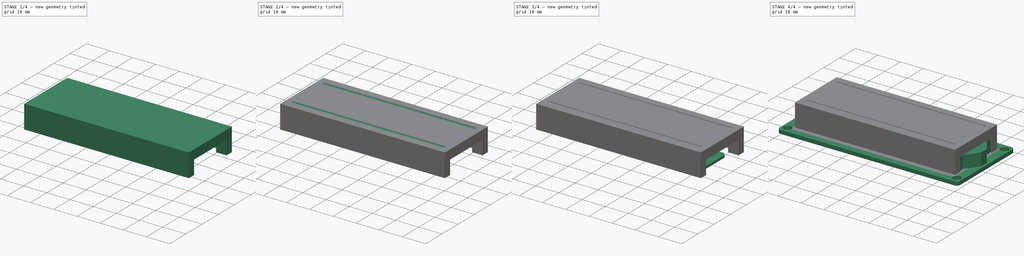
[diagram: build sequence overview — one tinted view per stage of 4, left to right]
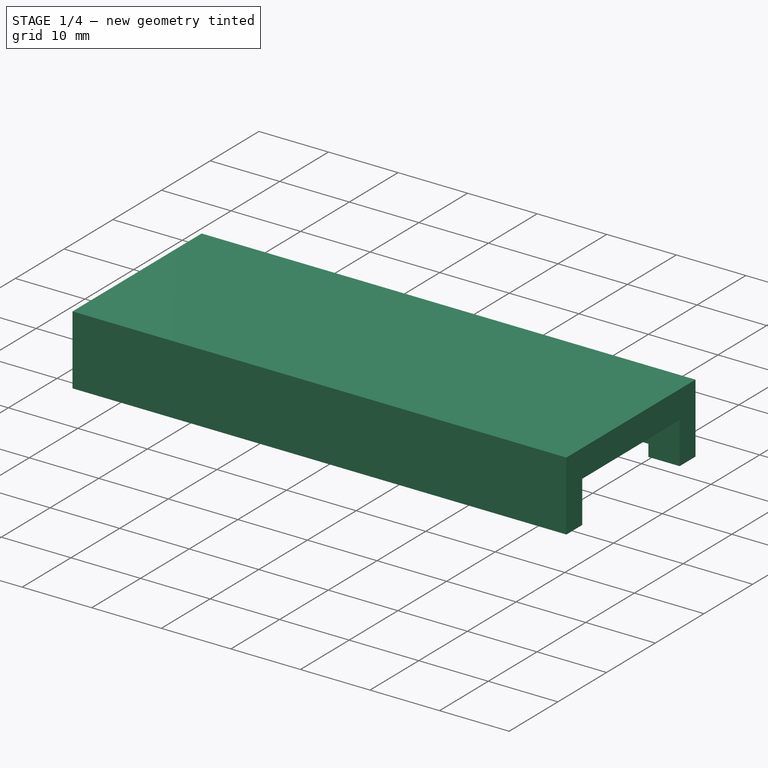
[diagram: stage 1 of 4 — iso view after this stage's code; geometry added in this stage tinted green]
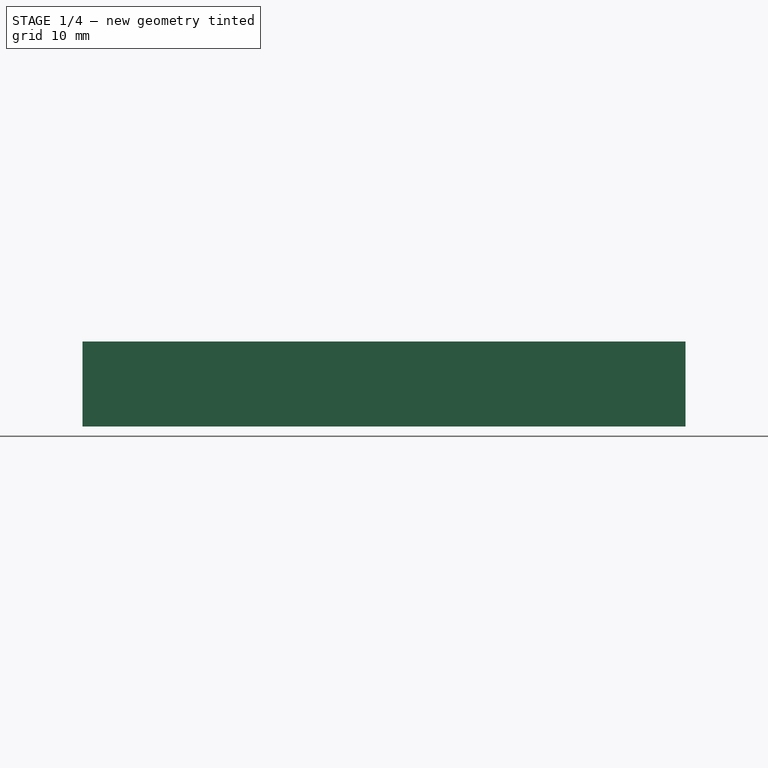
[diagram: stage 1 of 4 — front view after this stage's code; geometry added in this stage tinted green]
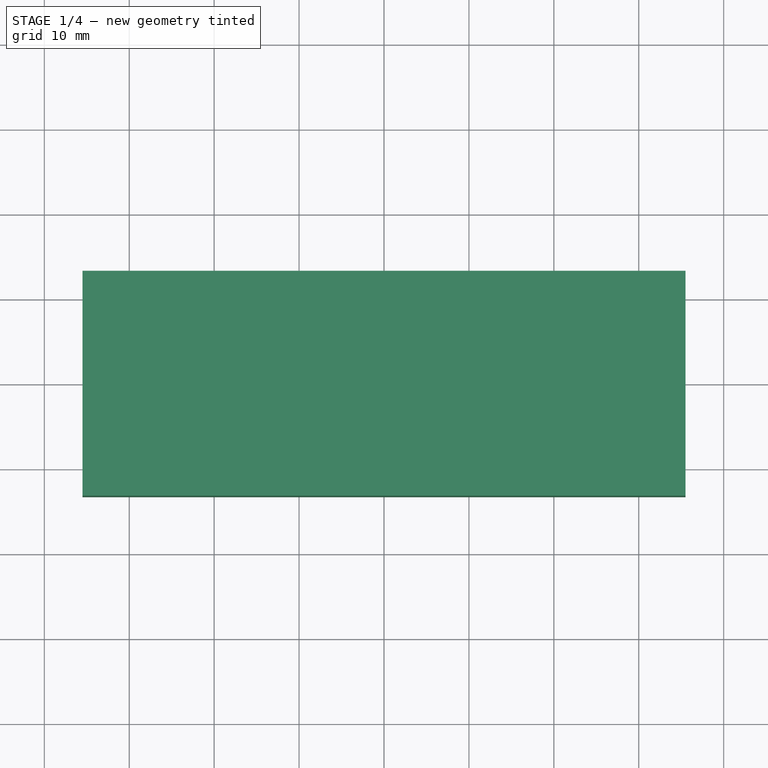
[diagram: stage 1 of 4 — top view after this stage's code; geometry added in this stage tinted green]
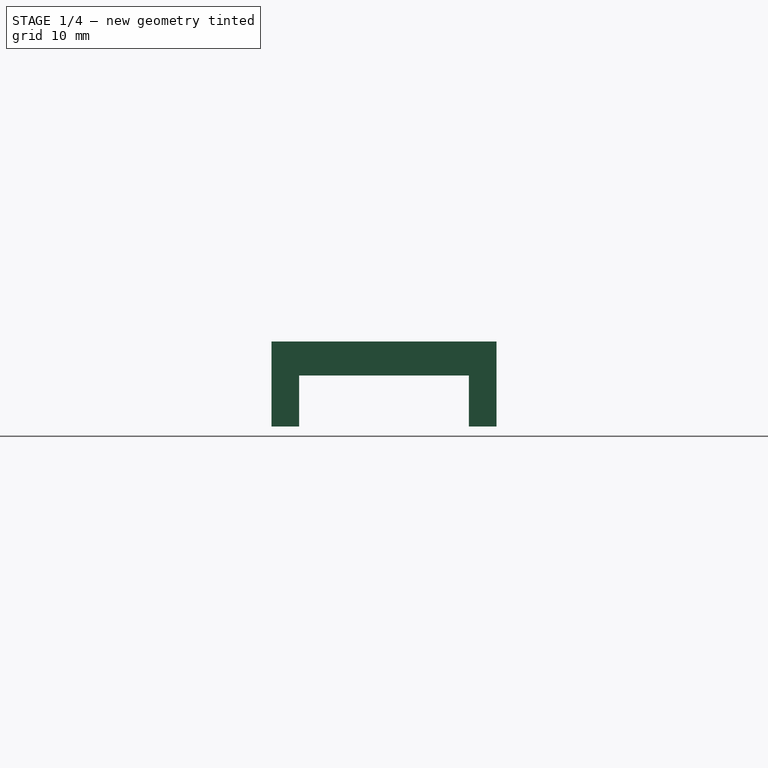
[diagram: stage 1 of 4 — right view after this stage's code; geometry added in this stage tinted green]
FCSTD DOCUMENT  (FreeCAD 1.0R39319 (Git))
Label: Display-LCD16x2
License: All rights reserved
LicenseURL: http://en.wikipedia.org/wiki/All_rights_reserved
objects: Sketcher::SketchObject×5, PartDesign::Pad×4, PartDesign::Body×4, PartDesign::Fillet×2, PartDesign::SubtractiveBox×2, PartDesign::Mirrored×2, PartDesign::Pocket×1
note: 45 computed .brp shape members not serialized (recipe doc carries the construction recipe); baked Part::Feature solids carry a one-line shape summary decoded from their .brp

FEATURE [PartDesign::Body] Body001
  AllowCompound = false
  Group = -> [Sketch002,Pad001]
  Origin = -> Origin001
  Tip = -> Pad001
FEATURE [Sketcher::SketchObject] Sketch003
  ArcFitTolerance = 0
  AttachmentSupport = -> [XY_Plane002]
  FullyConstrained = true
  MakeInternals = false
  MapMode = 5
  sketch-geometry (4):
    g0: LineSegment StartX=-35.5 StartY=13.25 StartZ=0 EndX=35.5 EndY=13.25 EndZ=0
    g1: LineSegment StartX=35.5 StartY=13.25 StartZ=0 EndX=35.5 EndY=-13.25 EndZ=0
    g2: LineSegment StartX=35.5 StartY=-13.25 StartZ=0 EndX=-35.5 EndY=-13.25 EndZ=0
    g3: LineSegment StartX=-35.5 StartY=-13.25 StartZ=0 EndX=-35.5 EndY=13.25 EndZ=0
  constraints (10):
    c: Coincident(g0,g1)
    c: Coincident(g1,g2)
    c: Coincident(g2,g3)
    c: Coincident(g3,g0)
    c: Horizontal(g2)
    c: Vertical(g3)
    c: DistanceY(g1,g1) = 26.5
    c: Symmetric(g0,g1,g-1)
    c: Symmetric(g0,g0,g-2)
    c: DistanceX(g2,g2) = 71
FEATURE [PartDesign::Pad] Pad002
  AllowMultiFace = false
  Direction = (0,0,1)
  Length = 10
  Length2 = 100
  Profile = -> Sketch003
  Suppressed = false
  Type = 0
FEATURE [PartDesign::SubtractiveBox] Box
  AttacherType = Attacher::AttachEngine3D
  AttachmentOffset = pos=(-10,0,-36) rot=(0,0,1;0rad)
  AttachmentSupport = -> [YZ_Plane002]
  BaseFeature = -> Pad002
  Height = 72
  Length = 20
  MapMode = 5
  Placement = pos=(-36,-10,0) rot=(0.57735,0.57735,0.57735;2.0944rad)
  Suppressed = false
  Width = 6
FEATURE [PartDesign::SubtractiveBox] Box001
  AttacherType = Attacher::AttachEngine3D
  AttachmentOffset = pos=(5,0,-13) rot=(0,0,1;0rad)
  AttachmentSupport = -> [XZ_Plane002]
  BaseFeature = -> Box
  Height = 26
  Length = 26
  MapMode = 5
  Placement = pos=(5,13,-2.9e-15) rot=(1,0,0;1.5708rad)
  Suppressed = false
  Width = 4
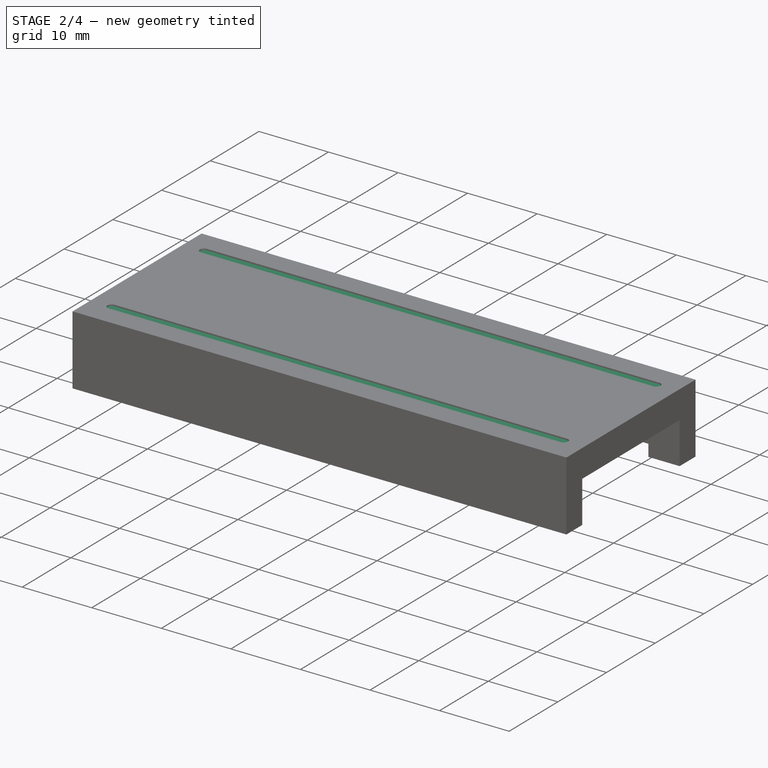
[diagram: stage 2 of 4 — iso view after this stage's code; geometry added in this stage tinted green]
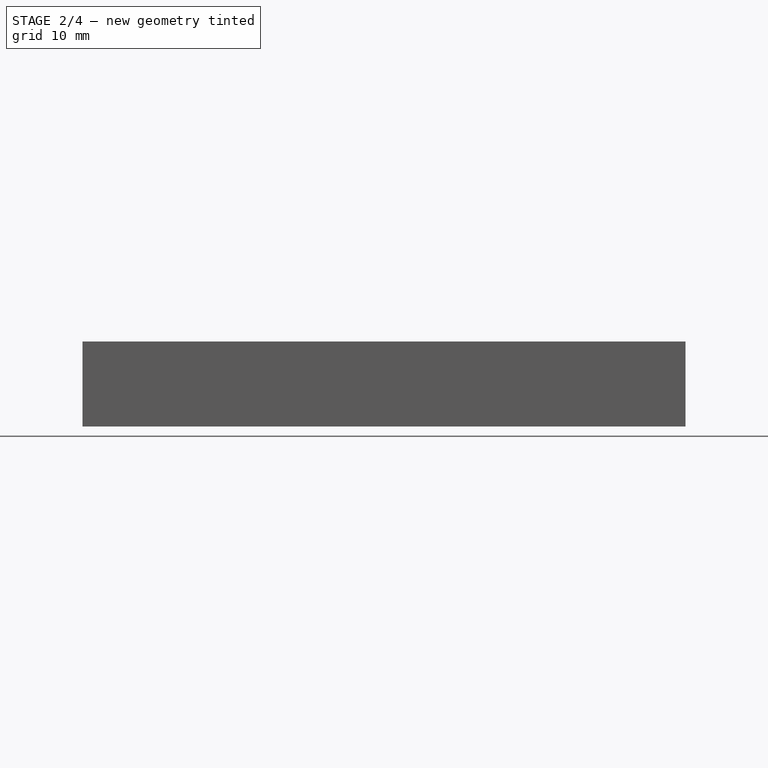
[diagram: stage 2 of 4 — front view after this stage's code; geometry added in this stage tinted green]
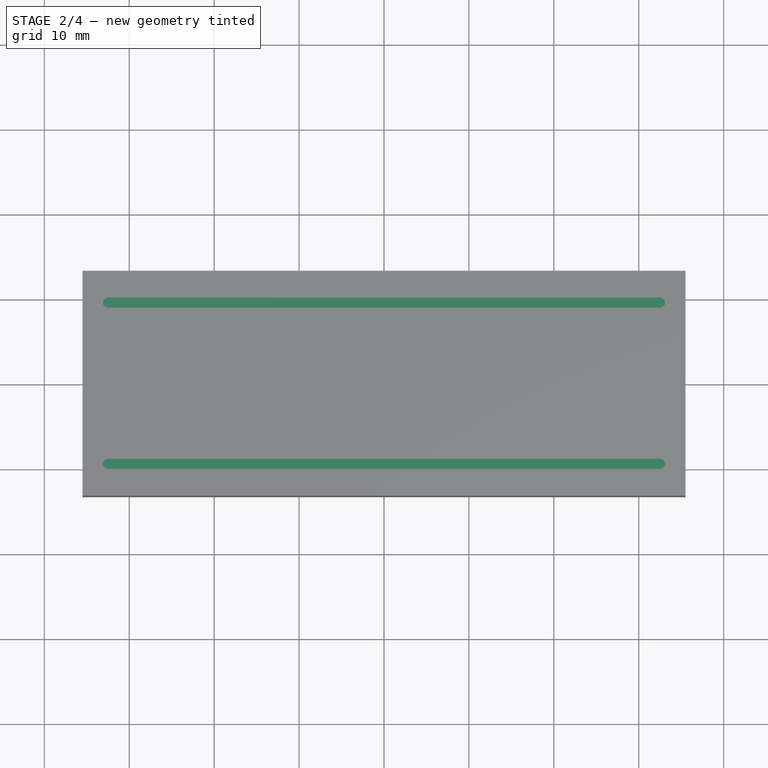
[diagram: stage 2 of 4 — top view after this stage's code; geometry added in this stage tinted green]
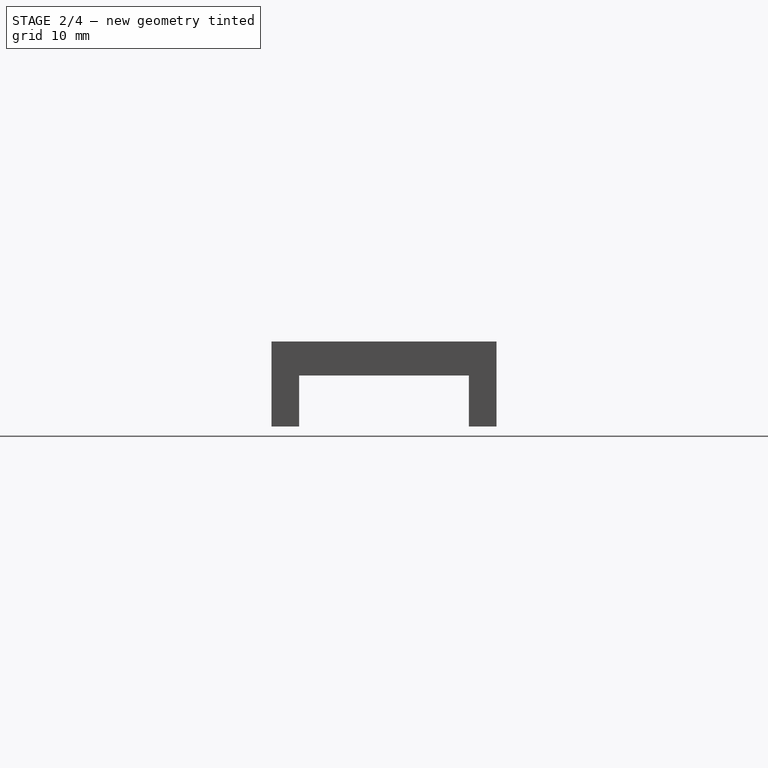
[diagram: stage 2 of 4 — right view after this stage's code; geometry added in this stage tinted green]
FEATURE [Sketcher::SketchObject] Sketch004
  ArcFitTolerance = 0
  AttachmentSupport = -> [Pad002]
  FullyConstrained = true
  MakeInternals = false
  MapMode = 5
  Placement = pos=(0,0,10) rot=(0,0,1;0rad)
  sketch-geometry (4):
    g0: ArcOfCircle CenterX=-32.5 CenterY=9.5 CenterZ=0 NormalX=0 NormalY=0 NormalZ=1 AngleXU=0 Radius=0.6 StartAngle=1.5708 EndAngle=4.71239
    g1: ArcOfCircle CenterX=32.5 CenterY=9.5 CenterZ=0 NormalX=0 NormalY=0 NormalZ=1 AngleXU=0 Radius=0.6 StartAngle=4.71239 EndAngle=7.85398
    g2: LineSegment StartX=-32.5 StartY=8.9 StartZ=0 EndX=32.5 EndY=8.9 EndZ=0
    g3: LineSegment StartX=-32.5 StartY=10.1 StartZ=0 EndX=32.5 EndY=10.1 EndZ=0
  constraints (9):
    c: Tangent(g0,g3) = 1.5708
    c: Tangent(g0,g2) = -1.5708
    c: Tangent(g2,g1) = -1.5708
    c: Tangent(g3,g1) = 1.5708
    c: Horizontal(g2)
    c: Symmetric(g0,g1,g-2)
    c: Radius(g1) = 0.6
    c: DistanceX(g0,g1) = 65
    c: DistanceY(g-1,g1) = 9.5
FEATURE [PartDesign::Pocket] Pocket
  AllowMultiFace = false
  BaseFeature = -> Box001
  Direction = (0,0,-1)
  Length = 0.2
  Length2 = 100
  Placement = pos=(5,13,-2.9e-15) rot=(1,0,0;1.5708rad)
  Profile = -> Sketch004
  Suppressed = false
  Type = 0
FEATURE [PartDesign::Body] Body003
  AllowCompound = false
  Group = -> [Sketch005,Pad003,Fillet001]
  Origin = -> Origin003
  Placement = pos=(0,0,9.5) rot=(0,0,1;0rad)
  Tip = -> Fillet001
FEATURE [PartDesign::Mirrored] Mirrored
  BaseFeature = -> Pocket
  MirrorPlane = -> XZ_Plane002
  Originals = -> [Pocket]
  Placement = pos=(5,13,-2.9e-15) rot=(1,0,0;1.5708rad)
  Suppressed = false
  TransformMode = 0
FEATURE [PartDesign::Mirrored] Mirrored001
  BaseFeature = -> Mirrored
  MirrorPlane = -> YZ_Plane002
  Originals = -> [Box001]
  Placement = pos=(5,13,-2.9e-15) rot=(1,0,0;1.5708rad)
  Suppressed = false
  TransformMode = 0
FEATURE [PartDesign::Body] Body002
  AllowCompound = false
  Group = -> [Sketch003,Pad002,Box,Box001,Sketch004,Pocket,Mirrored,Mirrored001]
  Origin = -> Origin002
  Tip = -> Mirrored001
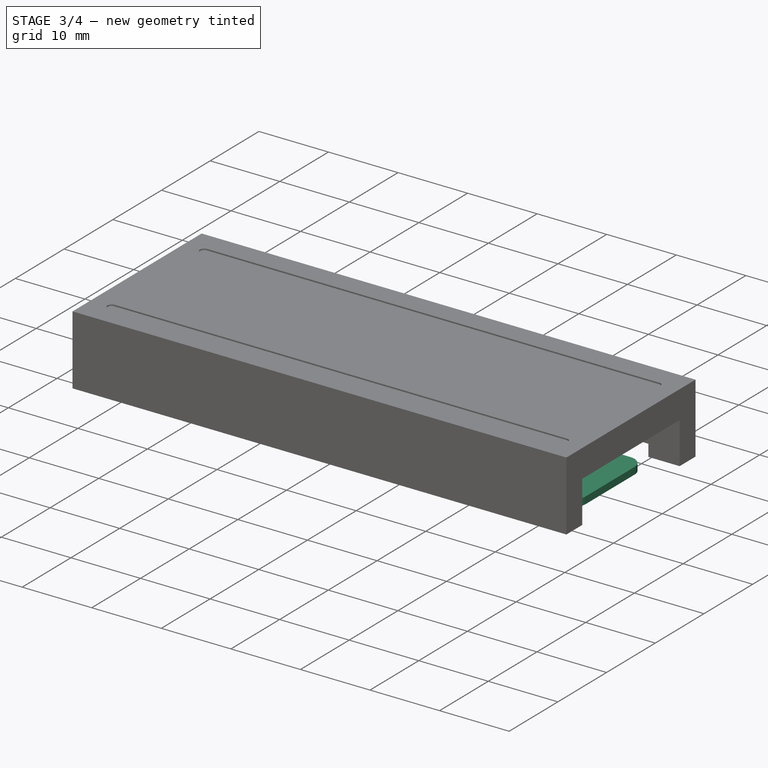
[diagram: stage 3 of 4 — iso view after this stage's code; geometry added in this stage tinted green]
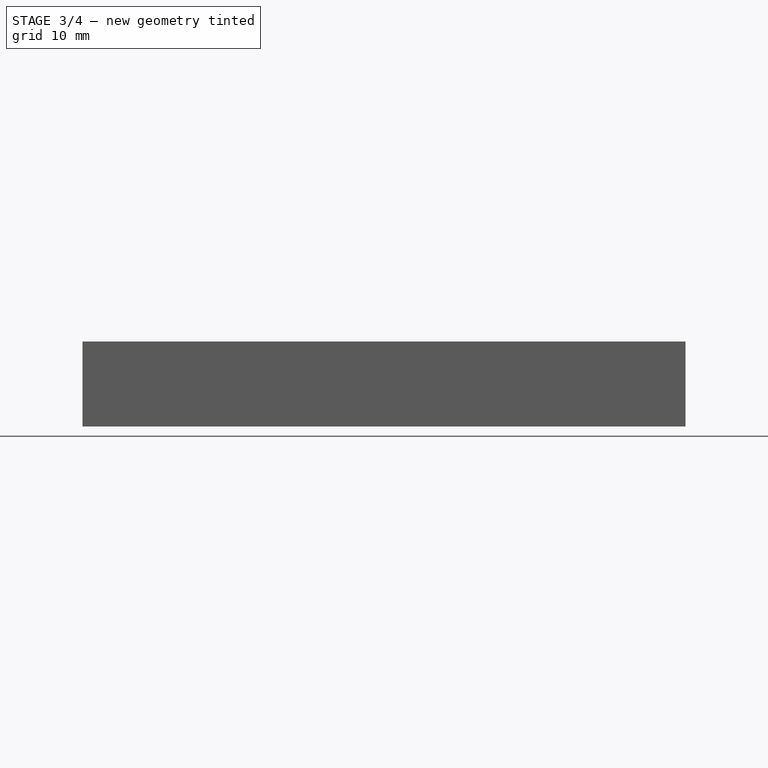
[diagram: stage 3 of 4 — front view after this stage's code; geometry added in this stage tinted green]
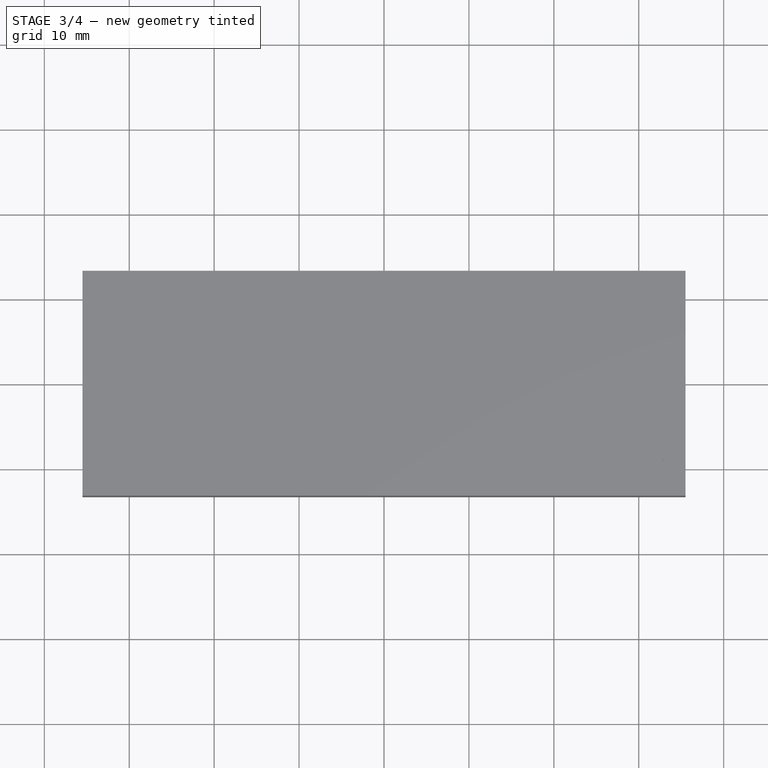
[diagram: stage 3 of 4 — top view after this stage's code; geometry added in this stage tinted green]
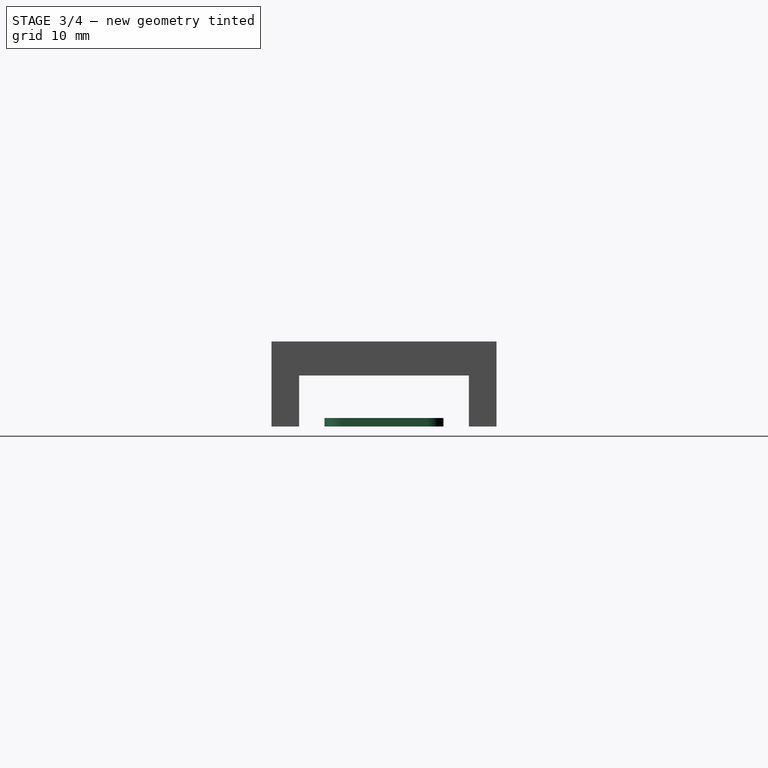
[diagram: stage 3 of 4 — right view after this stage's code; geometry added in this stage tinted green]
FEATURE [Sketcher::SketchObject] Sketch005
  ArcFitTolerance = 0
  AttachmentSupport = -> [XY_Plane003]
  FullyConstrained = true
  MakeInternals = false
  MapMode = 5
  sketch-geometry (4):
    g0: LineSegment StartX=-32.5 StartY=7 StartZ=0 EndX=32.5 EndY=7 EndZ=0
    g1: LineSegment StartX=32.5 StartY=7 StartZ=0 EndX=32.5 EndY=-7 EndZ=0
    g2: LineSegment StartX=32.5 StartY=-7 StartZ=0 EndX=-32.5 EndY=-7 EndZ=0
    g3: LineSegment StartX=-32.5 StartY=-7 StartZ=0 EndX=-32.5 EndY=7 EndZ=0
  constraints (10):
    c: Coincident(g0,g1)
    c: Coincident(g1,g2)
    c: Coincident(g2,g3)
    c: Coincident(g3,g0)
    c: Horizontal(g2)
    c: Vertical(g1)
    c: Symmetric(g0,g0,g-2)
    c: Symmetric(g0,g2,g-1)
    c: DistanceY(g1,g1) = 14
    c: DistanceX(g0,g0) = 65
FEATURE [PartDesign::Pad] Pad003
  AllowMultiFace = false
  Direction = (0,0,1)
  Length = 1
  Length2 = 100
  Profile = -> Sketch005
  Suppressed = false
  Type = 0
FEATURE [PartDesign::Fillet] Fillet001
  Base = -> Pad003 [Edge2,Edge5,Edge1,Edge8]
  BaseFeature = -> Pad003
  Radius = 2
  Refine = true
  SupportTransform = false
  Suppressed = false
  UseAllEdges = false
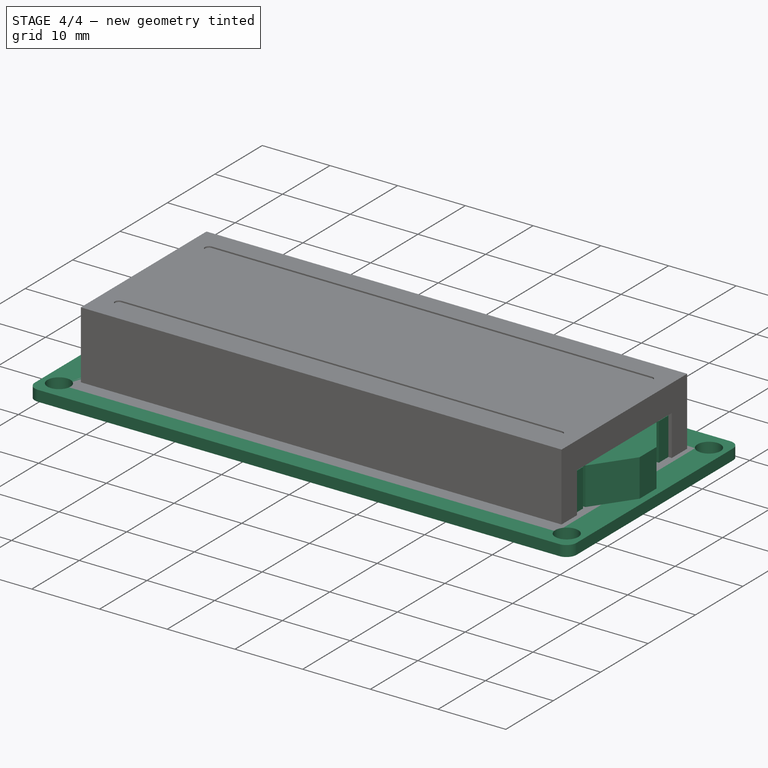
[diagram: stage 4 of 4 — iso view after this stage's code; geometry added in this stage tinted green]
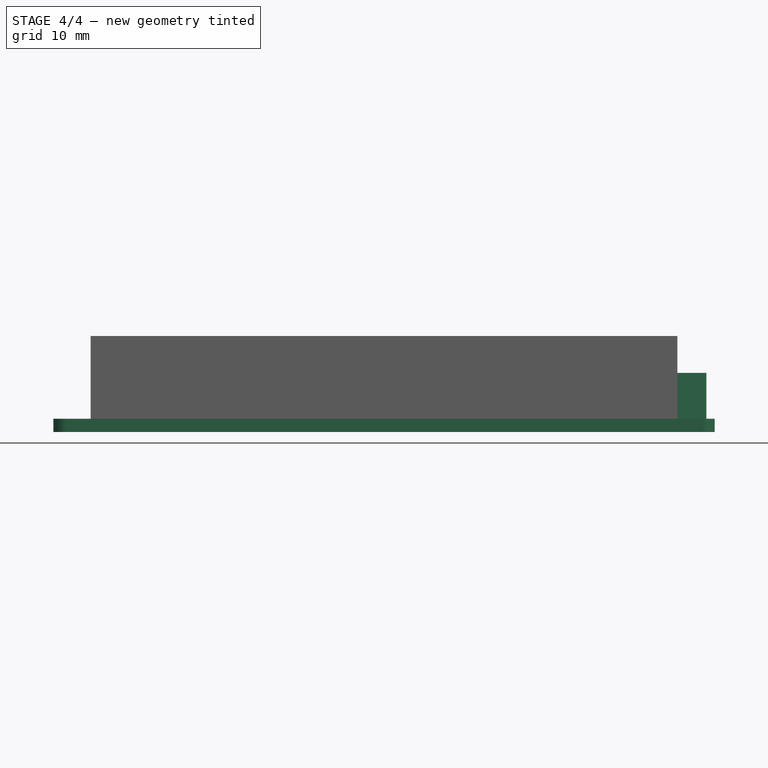
[diagram: stage 4 of 4 — front view after this stage's code; geometry added in this stage tinted green]
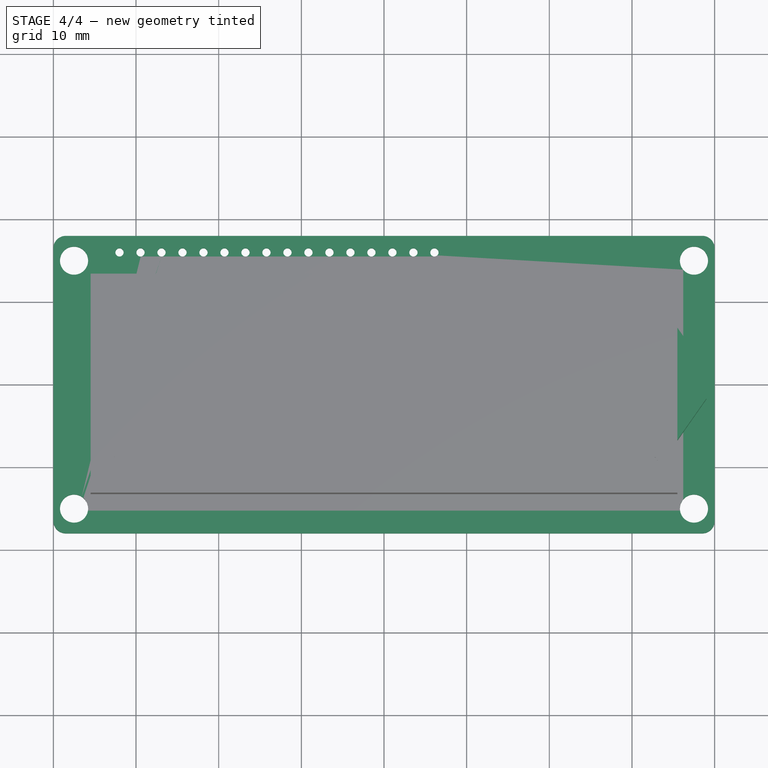
[diagram: stage 4 of 4 — top view after this stage's code; geometry added in this stage tinted green]
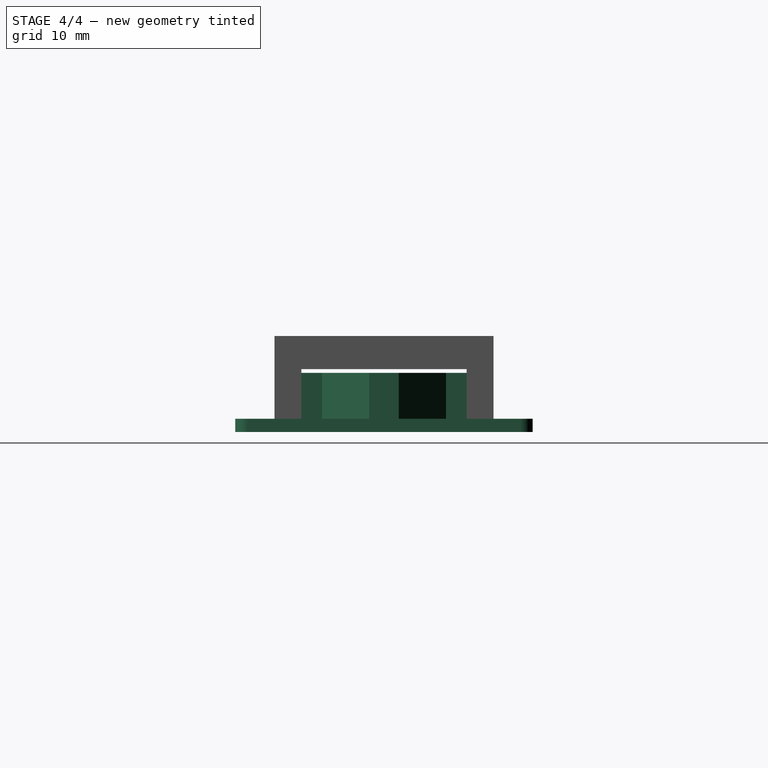
[diagram: stage 4 of 4 — right view after this stage's code; geometry added in this stage tinted green]
FEATURE [Sketcher::SketchObject] Sketch
  ArcFitTolerance = 0
  AttachmentSupport = -> [XY_Plane]
  FullyConstrained = true
  MakeInternals = false
  MapMode = 5
  sketch-geometry (24):
    g0: LineSegment StartX=-40 StartY=18 StartZ=0 EndX=40 EndY=18 EndZ=0
    g1: LineSegment StartX=40 StartY=18 StartZ=0 EndX=40 EndY=-18 EndZ=0
    g2: LineSegment StartX=40 StartY=-18 StartZ=0 EndX=-40 EndY=-18 EndZ=0
    g3: LineSegment StartX=-40 StartY=-18 StartZ=0 EndX=-40 EndY=18 EndZ=0
    g4: Circle CenterX=-37.5 CenterY=15 CenterZ=0 NormalX=0 NormalY=0 NormalZ=1 AngleXU=0 Radius=1.7
    g5: Circle CenterX=37.5 CenterY=15 CenterZ=0 NormalX=0 NormalY=0 NormalZ=1 AngleXU=0 Radius=1.7
    g6: Circle CenterX=37.5 CenterY=-15 CenterZ=0 NormalX=0 NormalY=0 NormalZ=1 AngleXU=0 Radius=1.7
    g7: Circle CenterX=-37.5 CenterY=-15 CenterZ=0 NormalX=0 NormalY=0 NormalZ=1 AngleXU=0 Radius=1.7
    g8: Circle CenterX=-32 CenterY=16 CenterZ=0 NormalX=0 NormalY=0 NormalZ=1 AngleXU=0 Radius=0.5
    g9: Circle CenterX=-29.46 CenterY=16 CenterZ=0 NormalX=0 NormalY=0 NormalZ=1 AngleXU=0 Radius=0.5
    g10: Circle CenterX=-26.92 CenterY=16 CenterZ=0 NormalX=0 NormalY=0 NormalZ=1 AngleXU=0 Radius=0.5
    g11: Circle CenterX=-24.38 CenterY=16 CenterZ=0 NormalX=0 NormalY=0 NormalZ=1 AngleXU=0 Radius=0.5
    g12: Circle CenterX=-21.84 CenterY=16 CenterZ=0 NormalX=0 NormalY=0 NormalZ=1 AngleXU=0 Radius=0.5
    g13: Circle CenterX=-19.3 CenterY=16 CenterZ=0 NormalX=0 NormalY=0 NormalZ=1 AngleXU=0 Radius=0.5
    g14: Circle CenterX=-16.76 CenterY=16 CenterZ=0 NormalX=0 NormalY=0 NormalZ=1 AngleXU=0 Radius=0.5
    g15: Circle CenterX=-11.68 CenterY=16 CenterZ=0 NormalX=0 NormalY=0 NormalZ=1 AngleXU=0 Radius=0.5
    g16: Circle CenterX=-14.22 CenterY=16 CenterZ=0 NormalX=0 NormalY=0 NormalZ=1 AngleXU=0 Radius=0.5
    g17: Circle CenterX=-9.14 CenterY=16 CenterZ=0 NormalX=0 NormalY=0 NormalZ=1 AngleXU=0 Radius=0.5
    g18: Circle CenterX=-6.6 CenterY=16 CenterZ=0 NormalX=0 NormalY=0 NormalZ=1 AngleXU=0 Radius=0.5
    g19: Circle CenterX=-4.06 CenterY=16 CenterZ=0 NormalX=0 NormalY=0 NormalZ=1 AngleXU=0 Radius=0.5
    g20: Circle CenterX=-1.52 CenterY=16 CenterZ=0 NormalX=0 NormalY=0 NormalZ=1 AngleXU=0 Radius=0.5
    g21: Circle CenterX=1.02 CenterY=16 CenterZ=0 NormalX=0 NormalY=0 NormalZ=1 AngleXU=0 Radius=0.5
    g22: Circle CenterX=3.56 CenterY=16 CenterZ=0 NormalX=0 NormalY=0 NormalZ=1 AngleXU=0 Radius=0.5
    g23: Circle CenterX=6.1 CenterY=16 CenterZ=0 NormalX=0 NormalY=0 NormalZ=1 AngleXU=0 Radius=0.5
  constraints (68):
    c: Coincident(g0,g1)
    c: Coincident(g1,g2)
    c: Coincident(g2,g3)
    c: Coincident(g3,g0)
    c: Horizontal(g2)
    c: Vertical(g1)
    c: Symmetric(g0,g0,g-2)
    c: Symmetric(g0,g2,g-1)
    c: DistanceX(g2,g2) = 80
    c: DistanceY(g1,g1) = 36
    c: Symmetric(g7,g4,g-1)
    c: Symmetric(g5,g4,g-2)
    c: Equal(g6,g5)
    c: Equal(g5,g4)
    c: Equal(g4,g7)
    c: Horizontal(g6,g7)
    c: Vertical(g6,g5)
    c: Diameter(g7) = 3.4
    c: DistanceX(g7,g6) = 75
    c: DistanceY(g6,g5) = 30
    c: Diameter(g8) = 1
    c: Equal(g8,g9) = 1
    c: Equal(g8,g10) = 1
    c: Equal(g10,g11) = 1
    c: Equal(g8,g12) = 1
    c: Equal(g12,g13) = 1
    c: Equal(g12,g14) = 1
    c: Equal(g14,g15) = 1
    c: Equal(g8,g16) = 1
    c: Equal(g16,g17) = 1
    c: Equal(g16,g18) = 1
    c: Equal(g18,g19) = 1
    c: Equal(g16,g20) = 1
    c: Equal(g20,g21) = 1
    c: Equal(g20,g22) = 1
    c: Equal(g22,g23) = 1
    c: Horizontal(g8,g9)
    c: Horizontal(g9,g10)
    c: Horizontal(g10,g11)
    c: Horizontal(g11,g12)
    c: Horizontal(g12,g13)
    c: Horizontal(g13,g14)
    c: Horizontal(g14,g16)
    c: Horizontal(g16,g15)
    c: Horizontal(g15,g17)
    c: Horizontal(g17,g18)
    c: Horizontal(g18,g19)
    c: Horizontal(g19,g20)
    c: Horizontal(g20,g21)
    c: Horizontal(g21,g22)
    c: Horizontal(g22,g23)
    c: DistanceX(g10,g11) = 2.54
    c: DistanceX(g11,g12) = 2.54
    c: DistanceX(g12,g13) = 2.54
    c: DistanceX(g13,g14) = 2.54
    c: DistanceX(g9,g10) = 2.54
    c: DistanceX(g8,g9) = 2.54
    c: DistanceX(g14,g16) = 2.54
    c: DistanceX(g16,g15) = 2.54
    c: DistanceX(g22,g23) = 2.54
    c: DistanceX(g21,g22) = 2.54
    c: DistanceX(g20,g21) = 2.54
    c: DistanceX(g19,g20) = 2.54
    c: DistanceX(g18,g19) = 2.54
    c: DistanceX(g17,g18) = 2.54
    c: DistanceX(g15,g17) = 2.54
    c: DistanceX(g0,g8) = 8
    c: DistanceY(g8,g0) = 2
FEATURE [PartDesign::Pad] Pad
  AllowMultiFace = false
  Direction = (0,0,1)
  Length = 1.6
  Length2 = 100
  Profile = -> Sketch
  Reversed = true
  Suppressed = false
  Type = 0
FEATURE [PartDesign::Fillet] Fillet
  Base = -> Pad [Edge5,Edge8,Edge2,Edge1]
  BaseFeature = -> Pad
  Radius = 1.5
  Refine = true
  SupportTransform = false
  Suppressed = false
  UseAllEdges = false
FEATURE [PartDesign::Body] Body
  AllowCompound = false
  Group = -> [Sketch,Pad,Fillet]
  Origin = -> Origin
  Tip = -> Fillet
FEATURE [Sketcher::SketchObject] Sketch002
  ArcFitTolerance = 0
  AttachmentSupport = -> [XY_Plane001]
  FullyConstrained = true
  MakeInternals = false
  MapMode = 5
  sketch-geometry (22):
    g0: LineSegment StartX=-35 StartY=7.5 StartZ=0 EndX=-5 EndY=7.5 EndZ=0
    g1: LineSegment StartX=35 StartY=-7.5 StartZ=0 EndX=5 EndY=-7.5 EndZ=0
    g2: LineSegment StartX=-35 StartY=-7.5 StartZ=0 EndX=-35 EndY=7.5 EndZ=0
    g3: LineSegment StartX=-35 StartY=11.5 StartZ=0 EndX=35 EndY=11.5 EndZ=0
    g4: LineSegment StartX=35 StartY=11.5 StartZ=0 EndX=35 EndY=8 EndZ=0
    g5: LineSegment StartX=35 StartY=8 StartZ=0 EndX=5 EndY=8 EndZ=0
    g6: LineSegment StartX=-35 StartY=8 StartZ=0 EndX=-35 EndY=11.5 EndZ=0
    g7: LineSegment StartX=-35 StartY=-8 StartZ=0 EndX=-5 EndY=-8 EndZ=0
    g8: LineSegment StartX=35 StartY=-8 StartZ=0 EndX=35 EndY=-11.5 EndZ=0
    g9: LineSegment StartX=35 StartY=-11.5 StartZ=0 EndX=-35 EndY=-11.5 EndZ=0
    g10: LineSegment StartX=-35 StartY=-11.5 StartZ=0 EndX=-35 EndY=-8 EndZ=0
    g11: LineSegment StartX=-5 StartY=8 StartZ=0 EndX=-5 EndY=7.5 EndZ=0
    g12: LineSegment StartX=5 StartY=8 StartZ=0 EndX=5 EndY=7.5 EndZ=0
    g13: LineSegment StartX=-5 StartY=-8 StartZ=0 EndX=-5 EndY=-7.5 EndZ=0
    g14: LineSegment StartX=5 StartY=-7.5 StartZ=0 EndX=5 EndY=-8 EndZ=0
    g15: LineSegment StartX=-5 StartY=8 StartZ=0 EndX=-35 EndY=8 EndZ=0
    g16: LineSegment StartX=5 StartY=7.5 StartZ=0 EndX=35 EndY=7.5 EndZ=0
    g17: LineSegment StartX=-5 StartY=-7.5 StartZ=0 EndX=-35 EndY=-7.5 EndZ=0
    g18: LineSegment StartX=5 StartY=-8 StartZ=0 EndX=35 EndY=-8 EndZ=0
    g19: LineSegment StartX=35 StartY=7.5 StartZ=0 EndX=39 EndY=1.78741 EndZ=0
    g20: LineSegment StartX=39 StartY=1.78741 StartZ=0 EndX=39 EndY=-1.78741 EndZ=0
    g21: LineSegment StartX=39 StartY=-1.78741 StartZ=0 EndX=35 EndY=-7.5 EndZ=0
  constraints (56):
    c: Coincident(g17,g2)
    c: Coincident(g2,g0)
    c: Horizontal(g1)
    c: Vertical(g2)
    c: Symmetric(g16,g1,g-1)
    c: Coincident(g3,g4)
    c: Coincident(g4,g5)
    c: Coincident(g15,g6)
    c: Coincident(g6,g3)
    c: Vertical(g4)
    c: Vertical(g6)
    c: Coincident(g18,g8)
    c: Coincident(g8,g9)
    c: Coincident(g9,g10)
    c: Coincident(g10,g7)
    c: Horizontal(g7)
    c: Vertical(g8)
    c: Vertical(g10)
    c: Symmetric(g7,g15,g-1)
    c: Symmetric(g9,g8,g-2)
    c: Symmetric(g3,g3,g-2)
    c: Equal(g6,g10)
    c: DistanceY(g8,g8) = 3.5
    c: Vertical(g11)
    c: Vertical(g12)
    c: Vertical(g13)
    c: Vertical(g14)
    c: Vertical(g11,g13)
    c: Vertical(g14,g12)
    c: Coincident(g15,g11)
    c: Tangent(g5,g15)
    c: Coincident(g0,g11)
    c: Coincident(g16,g12)
    c: Tangent(g0,g16)
    c: Coincident(g1,g14)
    c: Coincident(g17,g13)
    c: Tangent(g1,g17)
    c: Coincident(g7,g13)
    c: Coincident(g18,g14)
    c: Tangent(g7,g18)
    c: Coincident(g12,g5)
    c: Symmetric(g5,g11,g-2)
    c: Horizontal(g0)
    c: DistanceY(g14,g14) = 0.5
    c: Vertical(g7,g2)
    c: Vertical(g16,g4)
    c: DistanceX(g9,g9) = 70
    c: DistanceX(g13,g1) = 10
    c: DistanceY(g9,g3) = 23
    c: Coincident(g19,g16)
    c: Coincident(g19,g20)
    c: Coincident(g20,g21)
    c: Coincident(g21,g1)
    c: Symmetric(g19,g20,g-1)
    c: DistanceX(g16,g19) = 4
    c: Angle(g8,g21) = 2.53073
FEATURE [PartDesign::Pad] Pad001
  AllowMultiFace = false
  Direction = (0,0,1)
  Length = 5.54
  Length2 = 100
  Profile = -> Sketch002
  Suppressed = false
  Type = 0
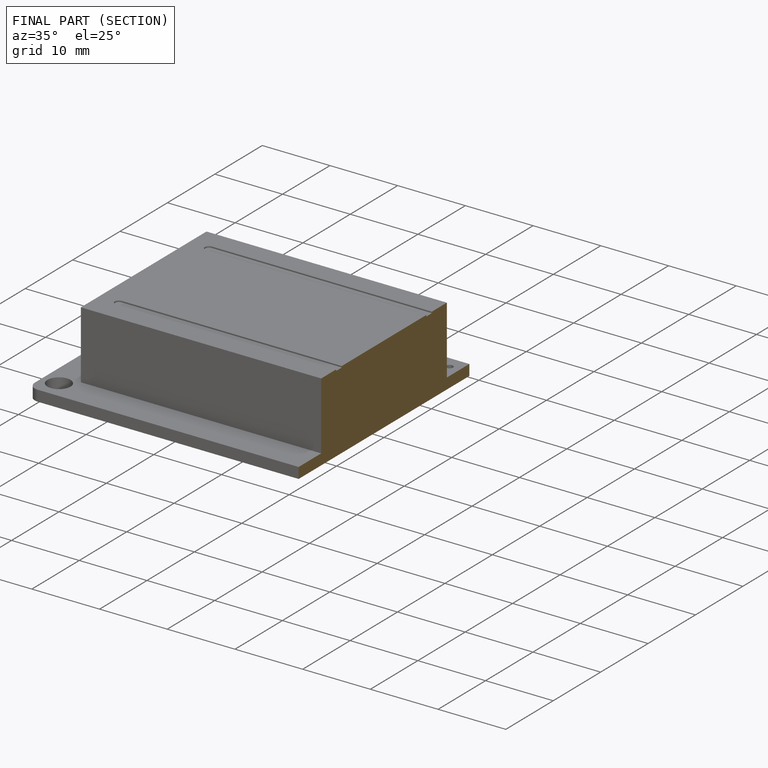
[diagram: finished part — half-section view (interior)]
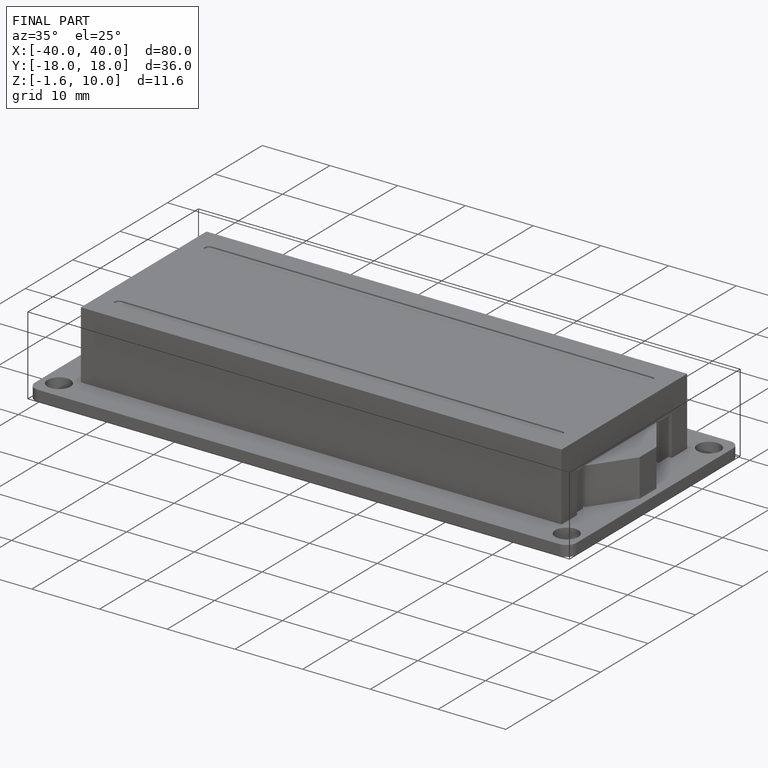
[diagram: finished part — iso view with bounding-box wireframe]
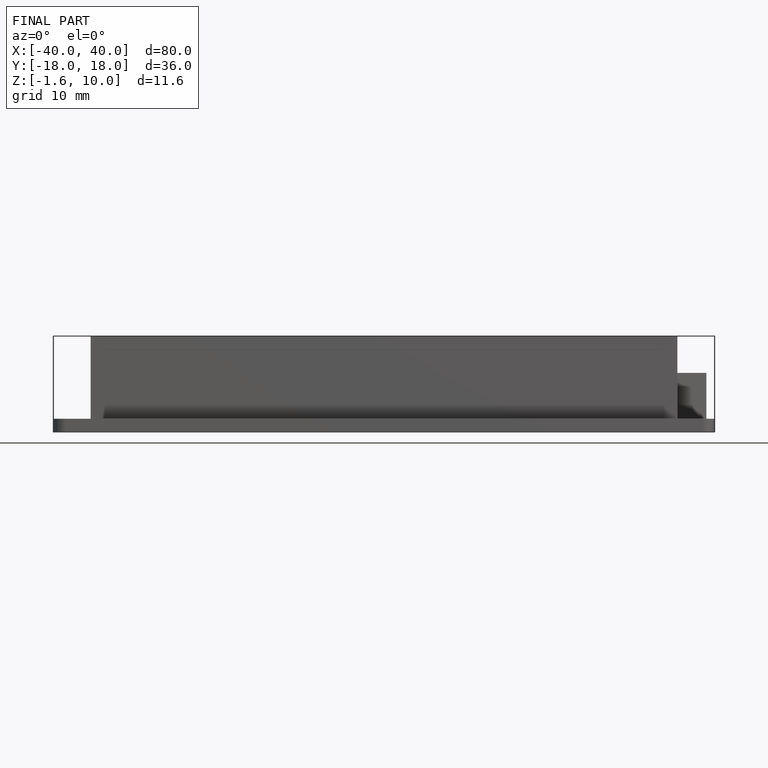
[diagram: finished part — front view with bounding-box wireframe]
